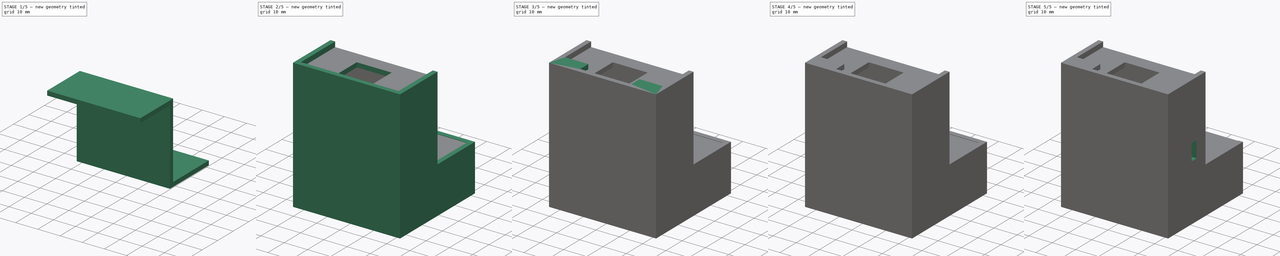
[diagram: build sequence overview — one tinted view per stage of 5, left to right]
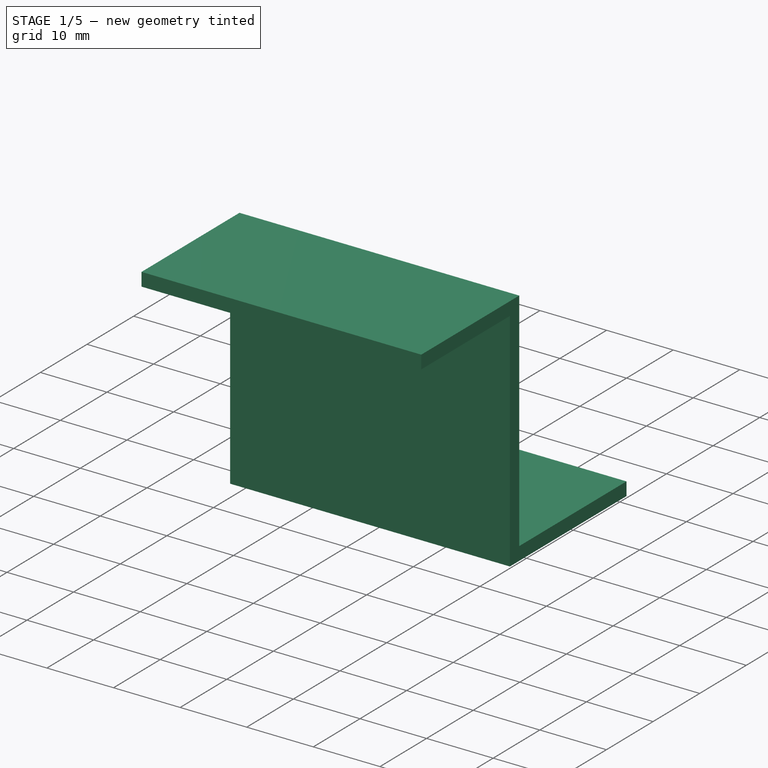
[diagram: stage 1 of 5 — iso view after this stage's code; geometry added in this stage tinted green]
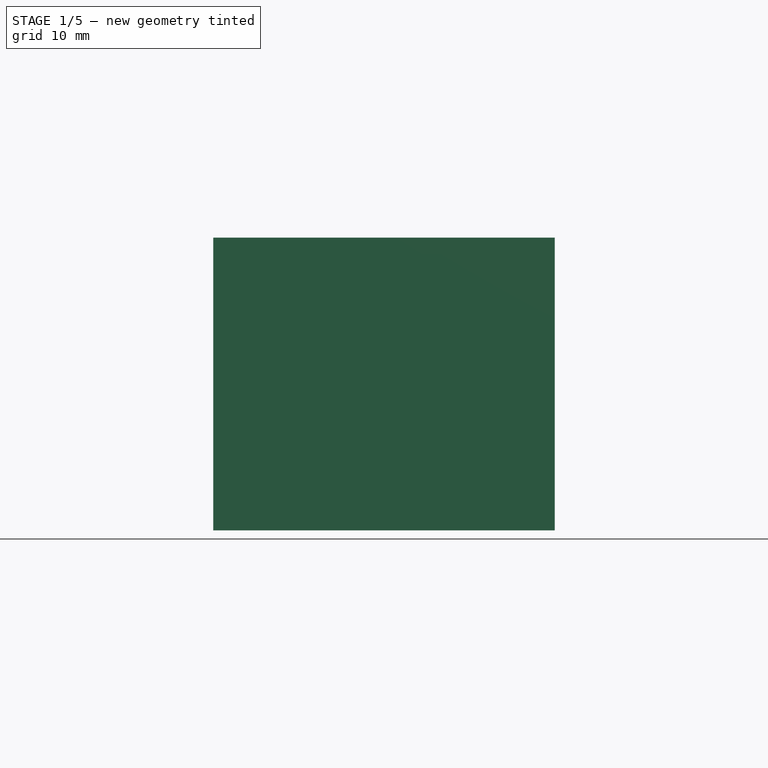
[diagram: stage 1 of 5 — front view after this stage's code; geometry added in this stage tinted green]
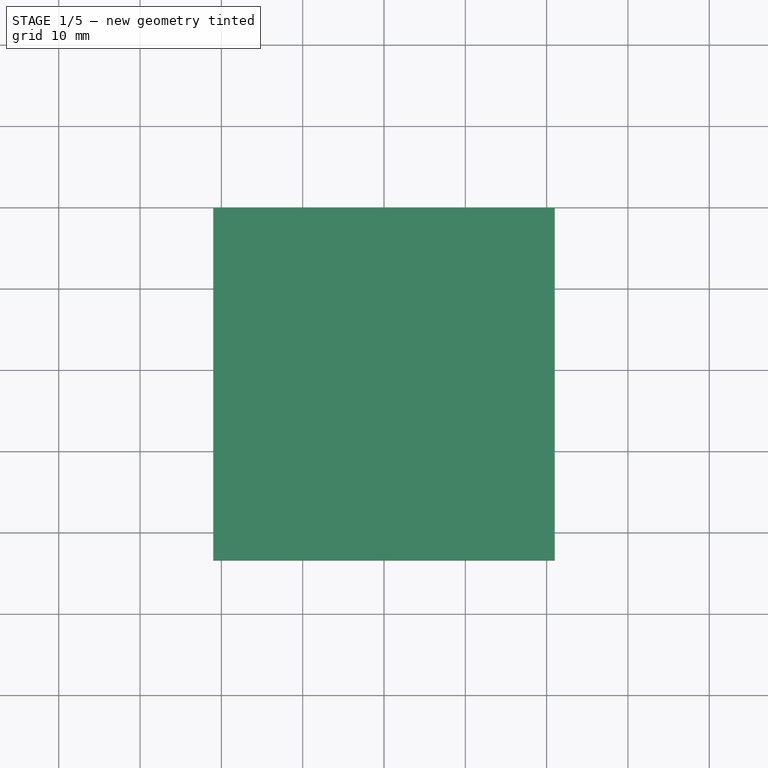
[diagram: stage 1 of 5 — top view after this stage's code; geometry added in this stage tinted green]
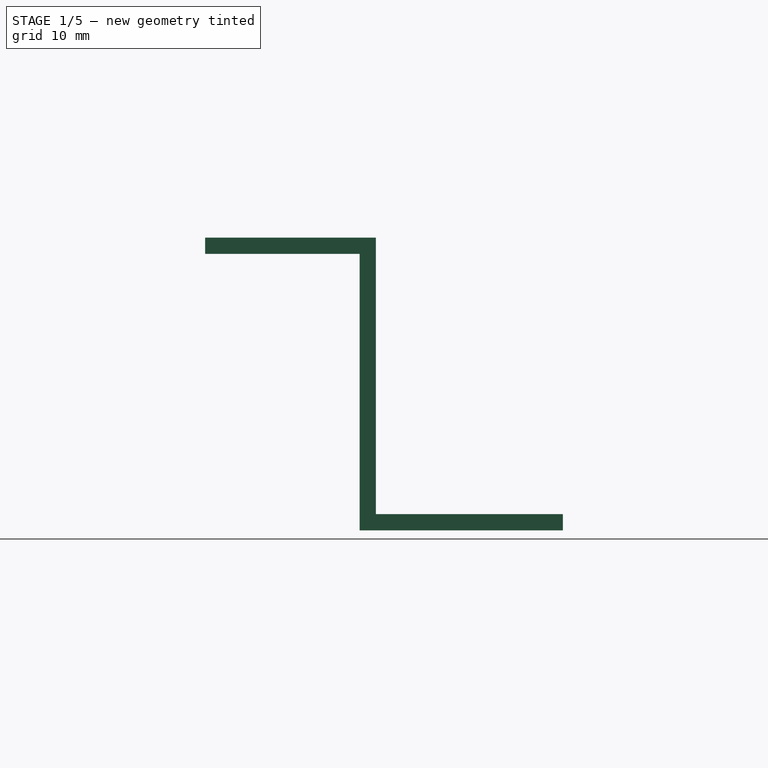
[diagram: stage 1 of 5 — right view after this stage's code; geometry added in this stage tinted green]
FCSTD DOCUMENT  (FreeCAD 1.0R39109 (Git))
Label: Casing for cable assemblies
License: All rights reserved
LicenseURL: https://en.wikipedia.org/wiki/All_rights_reserved
objects: Sketcher::SketchObject×23, PartDesign::Pocket×13, PartDesign::Pad×11, PartDesign::Body×2
note: 120 computed .brp shape members not serialized (recipe doc carries the construction recipe); baked Part::Feature solids carry a one-line shape summary decoded from their .brp

FEATURE [Sketcher::SketchObject] Sketch015
  ArcFitTolerance = 1e-06
  AttachmentSupport = -> [XZ_Plane001]
  FullyConstrained = false
  MakeInternals = false
  MapMode = 5
  Placement = pos=(0,0,0) rot=(1,0,0;1.5708rad)
  sketch-geometry (5):
    g0: LineSegment StartX=-21 StartY=-26.1813 StartZ=0 EndX=21 EndY=-26.1813 EndZ=0
    g1: LineSegment StartX=21 StartY=-26.1813 StartZ=0 EndX=21 EndY=25.8187 EndZ=0
    g2: LineSegment StartX=21 StartY=25.8187 StartZ=0 EndX=-21 EndY=25.8187 EndZ=0
    g3: LineSegment StartX=-21 StartY=25.8187 StartZ=0 EndX=-21 EndY=-26.1813 EndZ=0
    g4: GeomPoint [constr] X=0 Y=-0.181256 Z=0
  constraints (12):
    c: Coincident(g0,g1)
    c: Coincident(g1,g2)
    c: Coincident(g2,g3)
    c: Coincident(g3,g0)
    c: Horizontal(g0)
    c: Horizontal(g2)
    c: Vertical(g1)
    c: Vertical(g3)
    c: Symmetric(g2,g0,g4)
    c: Distance(g1,g3) = 42
    c: Distance(g0,g2) = 52
    c: PointOnObject(g4,g-2)
FEATURE [PartDesign::Pad] Pad010
  Direction = (0,-1,2e-16)
  Length = 44
  Length2 = 10
  Placement = pos=(0,0,0) rot=(1,0,0;1.5708rad)
  Profile = -> Sketch015
  ReferenceAxis = -> Sketch015 [N_Axis]
  Refine = true
  Suppressed = false
  Type = 0
FEATURE [Sketcher::SketchObject] Sketch016
  ArcFitTolerance = 1e-06
  AttachmentSupport = -> [Pad010]
  ExternalGeometry = -> [Pad010]
  FullyConstrained = false
  MakeInternals = false
  MapMode = 5
  Placement = pos=(0,-44,9.8e-15) rot=(1,0,0;1.5708rad)
  sketch-geometry (5):
    g0: LineSegment StartX=-21 StartY=23.8187 StartZ=0 EndX=-21 EndY=-26.1813 EndZ=0
    g1: LineSegment StartX=-21 StartY=-26.1813 StartZ=0 EndX=21 EndY=-26.1813 EndZ=0
    g2: LineSegment StartX=21 StartY=-26.1813 StartZ=0 EndX=21 EndY=23.8187 EndZ=0
    g3: LineSegment StartX=21 StartY=23.8187 StartZ=0 EndX=-21 EndY=23.8187 EndZ=0
    g4: GeomPoint [constr] X=0 Y=0 Z=0
  constraints (9):
    c: Coincident(g0,g1)
    c: Coincident(g1,g2)
    c: Coincident(g2,g3)
    c: Coincident(g3,g0)
    c: Coincident(g4,g-1)
    c: Distance(g-6,g3) = 2
    c: Coincident(g1,g-5)
    c: Coincident(g0,g-5)
    c: PointOnObject(g0,g-4)
FEATURE [PartDesign::Pocket] Pocket006
  BaseFeature = -> Pad010
  Direction = (0,1,-2e-16)
  Length = 19
  Length2 = 5
  Placement = pos=(0,0,0) rot=(1,0,0;1.5708rad)
  Profile = -> Sketch016
  ReferenceAxis = -> Sketch016 [N_Axis]
  Refine = true
  Suppressed = false
  Type = 0
FEATURE [Sketcher::SketchObject] Sketch017
  ArcFitTolerance = 1e-06
  AttachmentSupport = -> [Pocket006]
  ExternalGeometry = -> [Pocket006]
  FullyConstrained = false
  MakeInternals = false
  MapMode = 5
  Placement = pos=(0,5.7e-15,25.8187) rot=(0,0,1;3.14159rad)
  sketch-geometry (4):
    g0: LineSegment StartX=-21 StartY=23 StartZ=0 EndX=-21 EndY=0 EndZ=0
    g1: LineSegment StartX=-21 StartY=0 StartZ=0 EndX=21 EndY=0 EndZ=0
    g2: LineSegment StartX=21 StartY=0 StartZ=0 EndX=21 EndY=23 EndZ=0
    g3: LineSegment StartX=21 StartY=23 StartZ=0 EndX=-21 EndY=23 EndZ=0
  constraints (10):
    c: PointOnObject(g0,g-3)
    c: PointOnObject(g1,g0)
    c: Coincident(g1,g-4)
    c: Horizontal(g1)
    c: Coincident(g2,g1)
    c: Coincident(g3,g2)
    c: Coincident(g3,g0)
    c: PointOnObject(g2,g-4)
    c: Horizontal(g3)
    c: Distance(g3,g-6) = 2
FEATURE [PartDesign::Pocket] Pocket007
  BaseFeature = -> Pocket006
  Direction = (0,0,-1)
  Length = 34
  Length2 = 5
  Placement = pos=(0,0,0) rot=(1,0,0;1.5708rad)
  Profile = -> Sketch017
  ReferenceAxis = -> Sketch017 [N_Axis]
  Refine = true
  Suppressed = false
  Type = 0
FEATURE [Sketcher::SketchObject] Sketch018
  ArcFitTolerance = 1e-06
  AttachmentSupport = -> [Pocket007]
  ExternalGeometry = -> [Pocket007]
  FullyConstrained = false
  MakeInternals = false
  MapMode = 5
  Placement = pos=(0,0,0) rot=(-1,0,0;1.5708rad)
  sketch-geometry (6):
    g0: LineSegment StartX=-21 StartY=10.1813 StartZ=0 EndX=-21 EndY=26.1813 EndZ=0
    g1: LineSegment StartX=-21 StartY=26.1813 StartZ=0 EndX=-7.0155 EndY=26.1813 EndZ=0
    g2: LineSegment StartX=6.99325 StartY=26.1813 StartZ=0 EndX=21 EndY=26.1813 EndZ=0
    g3: LineSegment StartX=21 StartY=10.1813 StartZ=0 EndX=21 EndY=26.1813 EndZ=0
    g4: LineSegment StartX=-7.0155 StartY=26.1813 StartZ=0 EndX=6.99325 EndY=26.1813 EndZ=0
    g5: LineSegment StartX=21 StartY=10.1813 StartZ=0 EndX=-21 EndY=10.1813 EndZ=0
  constraints (14):
    c: PointOnObject(g2,g-3)
    c: PointOnObject(g1,g-3)
    c: Coincident(g0,g-5)
    c: Coincident(g1,g0)
    c: Coincident(g2,g-6)
    c: Coincident(g3,g2)
    c: Coincident(g4,g1)
    c: Coincident(g4,g2)
    c: PointOnObject(g3,g-6)
    c: PointOnObject(g0,g-5)
    c: Coincident(g5,g3)
    c: Coincident(g5,g0)
    c: Horizontal(g5)
    c: Distance(g5,g-4) = 2
FEATURE [PartDesign::Pocket] Pocket008
  BaseFeature = -> Pocket007
  Direction = (0,-1,-2e-16)
  Length = 2
  Length2 = 5
  Placement = pos=(0,0,0) rot=(1,0,0;1.5708rad)
  Profile = -> Sketch018
  ReferenceAxis = -> Sketch018 [N_Axis]
  Refine = true
  Suppressed = false
  Type = 0
FEATURE [PartDesign::Body] Body  label="Main Body"
  AllowCompound = false
  Group = -> [Sketch,Pad,Sketch001,Pocket,Sketch002,Pocket001,Sketch003,Pad001,Sketch004,Pad002,Pad003,Sketch005,Pad004,Sketch006,Pad005,Sketch007,Pocket002,Sketch008,Pad006,Sketch009,Pad007,Sketch010,Pocket003,Sketch011,Pocket004,Sketch012,Pocket005,Sketch013,Pad008,Sketch014,Pad009,Sketch019,Pocket009]
  Origin = -> Origin
  Tip = -> Pocket009
FEATURE [Sketcher::SketchObject] Sketch020
  ArcFitTolerance = 1e-06
  AttachmentSupport = -> [Pocket008]
  ExternalGeometry = -> [Pocket008]
  FullyConstrained = true
  MakeInternals = false
  MapMode = 5
  Placement = pos=(0,-2,-4e-16) rot=(-1,0,0;1.5708rad)
  sketch-geometry (4):
    g0: LineSegment StartX=-21 StartY=26.1813 StartZ=0 EndX=21 EndY=26.1813 EndZ=0
    g1: LineSegment StartX=21 StartY=10.1813 StartZ=0 EndX=21 EndY=26.1813 EndZ=0
    g2: LineSegment StartX=21 StartY=10.1813 StartZ=0 EndX=-21 EndY=10.1813 EndZ=0
    g3: LineSegment StartX=-21 StartY=26.1813 StartZ=0 EndX=-21 EndY=10.1813 EndZ=0
  constraints (8):
    c: Coincident(g0,g-6)
    c: Coincident(g0,g-5)
    c: Coincident(g1,g-4)
    c: Coincident(g1,g0)
    c: Coincident(g2,g1)
    c: Coincident(g2,g-6)
    c: Coincident(g3,g0)
    c: Coincident(g3,g2)
FEATURE [PartDesign::Pocket] Pocket010
  BaseFeature = -> Pocket008
  Direction = (0,-1,-2e-16)
  Length = 23
  Length2 = 5
  Placement = pos=(0,0,0) rot=(1,0,0;1.5708rad)
  Profile = -> Sketch020
  ReferenceAxis = -> Sketch020 [N_Axis]
  Refine = true
  Suppressed = false
  Type = 0
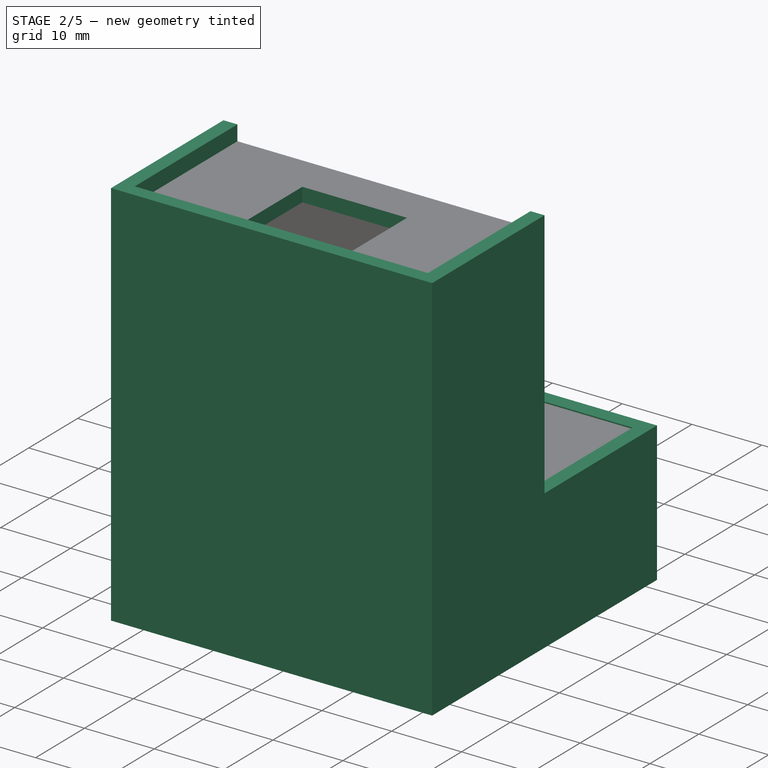
[diagram: stage 2 of 5 — iso view after this stage's code; geometry added in this stage tinted green]
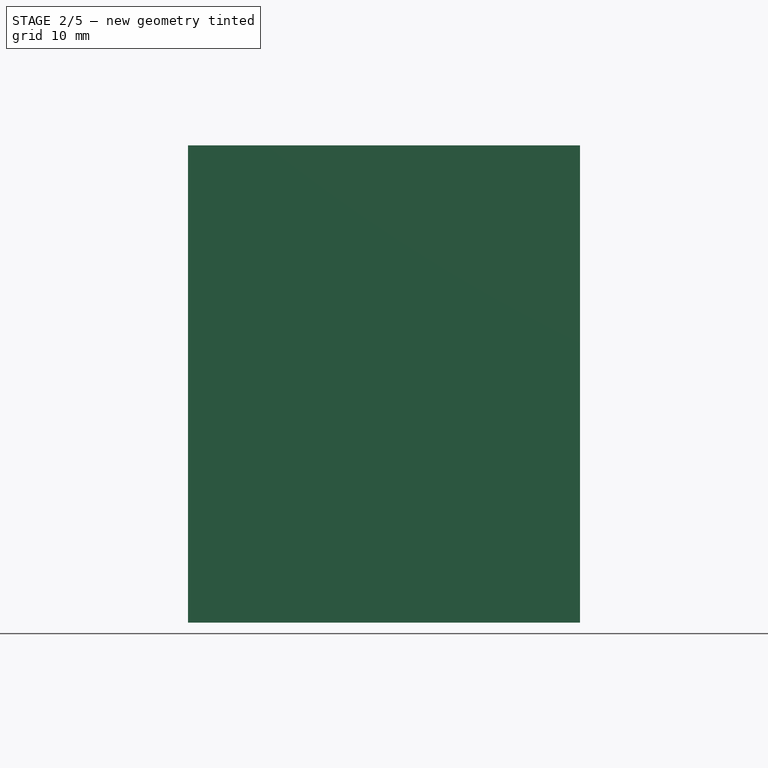
[diagram: stage 2 of 5 — front view after this stage's code; geometry added in this stage tinted green]
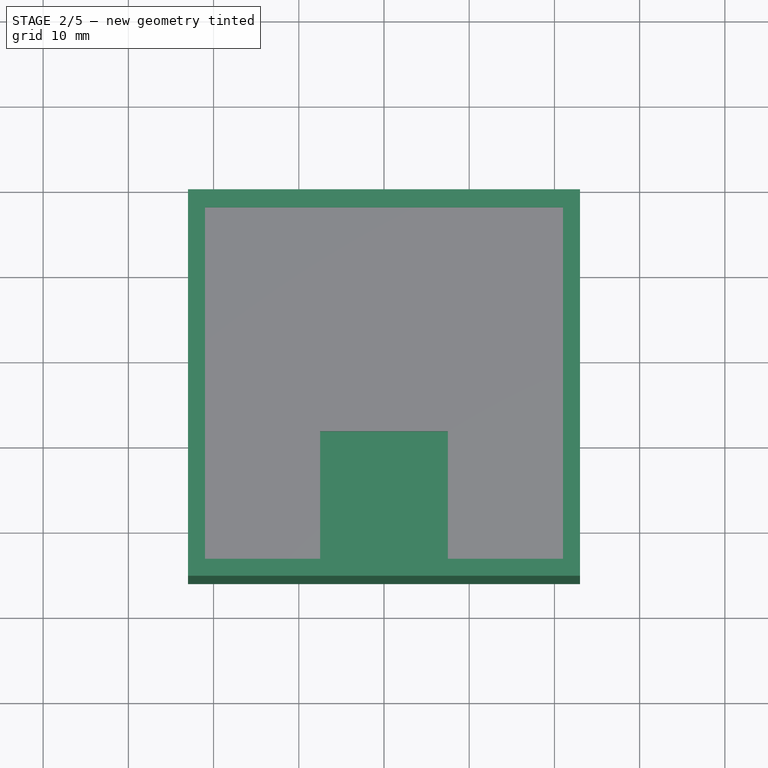
[diagram: stage 2 of 5 — top view after this stage's code; geometry added in this stage tinted green]
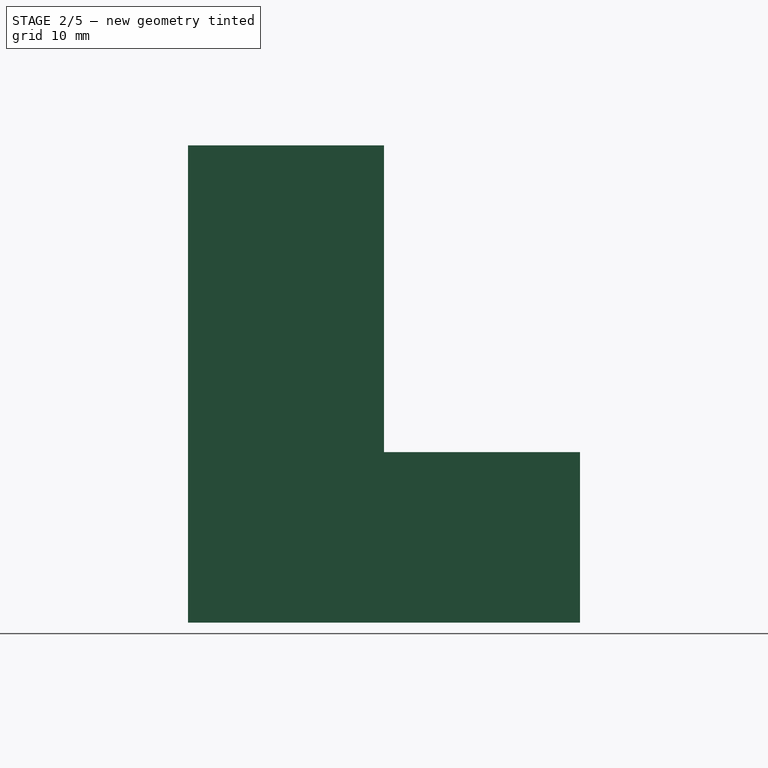
[diagram: stage 2 of 5 — right view after this stage's code; geometry added in this stage tinted green]
FEATURE [Sketcher::SketchObject] Sketch
  ArcFitTolerance = 1e-06
  AttachmentSupport = -> [XZ_Plane]
  FullyConstrained = true
  MakeInternals = false
  MapMode = 5
  Placement = pos=(0,0,0) rot=(1,0,0;1.5708rad)
  sketch-geometry (5):
    g0: LineSegment StartX=-23 StartY=28 StartZ=0 EndX=-23 EndY=-28 EndZ=0
    g1: LineSegment StartX=-23 StartY=-28 StartZ=0 EndX=23 EndY=-28 EndZ=0
    g2: LineSegment StartX=23 StartY=-28 StartZ=0 EndX=23 EndY=28 EndZ=0
    g3: LineSegment StartX=23 StartY=28 StartZ=0 EndX=-23 EndY=28 EndZ=0
    g4: GeomPoint [constr] X=0 Y=0 Z=0
  constraints (12):
    c: Coincident(g0,g1)
    c: Coincident(g1,g2)
    c: Coincident(g2,g3)
    c: Coincident(g3,g0)
    c: Vertical(g0)
    c: Vertical(g2)
    c: Horizontal(g1)
    c: Horizontal(g3)
    c: Symmetric(g2,g0,g4)
    c: Coincident(g4,g-1)
    c: DistanceY(g1,g2) = 56
    c: DistanceX(g0,g1) = 46
FEATURE [PartDesign::Pad] Pad
  Direction = (0,-1,2e-16)
  Length = 46
  Length2 = 10
  Placement = pos=(0,0,0) rot=(1,0,0;1.5708rad)
  Profile = -> Sketch
  ReferenceAxis = -> Sketch [N_Axis]
  Refine = true
  Suppressed = false
  Type = 0
FEATURE [Sketcher::SketchObject] Sketch001
  ArcFitTolerance = 1e-06
  AttachmentSupport = -> [Pad]
  ExternalGeometry = -> [Pad]
  FullyConstrained = true
  MakeInternals = false
  MapMode = 5
  Placement = pos=(0,0,0) rot=(-1,0,0;1.5708rad)
  sketch-geometry (4):
    g0: LineSegment StartX=-23 StartY=-28 StartZ=0 EndX=23 EndY=-28 EndZ=0
    g1: LineSegment StartX=23 StartY=-28 StartZ=0 EndX=23 EndY=8 EndZ=0
    g2: LineSegment StartX=23 StartY=8 StartZ=0 EndX=-23 EndY=8 EndZ=0
    g3: LineSegment StartX=-23 StartY=-28 StartZ=0 EndX=-23 EndY=8 EndZ=0
  constraints (10):
    c: Coincident(g0,g-5)
    c: Coincident(g0,g-4)
    c: PointOnObject(g1,g-4)
    c: DistanceY(g1,g1) = 36
    c: Coincident(g0,g1)
    c: Coincident(g2,g1)
    c: PointOnObject(g2,g-5)
    c: Horizontal(g2)
    c: Coincident(g3,g0)
    c: Coincident(g3,g2)
FEATURE [PartDesign::Pocket] Pocket
  BaseFeature = -> Pad
  Direction = (0,-1,-2e-16)
  Length = 23
  Length2 = 5
  Placement = pos=(0,0,0) rot=(1,0,0;1.5708rad)
  Profile = -> Sketch001
  ReferenceAxis = -> Sketch001 [N_Axis]
  Refine = true
  Suppressed = false
  Type = 0
FEATURE [Sketcher::SketchObject] Sketch002
  ArcFitTolerance = 1e-06
  AttachmentSupport = -> [Pocket]
  ExternalGeometry = -> [Pocket]
  FullyConstrained = false
  MakeInternals = false
  MapMode = 5
  Placement = pos=(0,6.2e-15,28) rot=(0,0,1;3.14159rad)
  sketch-geometry (5):
    g0: LineSegment StartX=-21 StartY=44 StartZ=0 EndX=-21 EndY=2.13527 EndZ=0
    g1: LineSegment StartX=-21 StartY=2.13527 StartZ=0 EndX=21 EndY=2.13527 EndZ=0
    g2: LineSegment StartX=21 StartY=2.13527 StartZ=0 EndX=21 EndY=44 EndZ=0
    g3: LineSegment StartX=21 StartY=44 StartZ=0 EndX=-21 EndY=44 EndZ=0
    g4: GeomPoint [constr] X=0 Y=23.0676 Z=0
  constraints (12):
    c: Coincident(g0,g1)
    c: Coincident(g1,g2)
    c: Coincident(g2,g3)
    c: Coincident(g3,g0)
    c: Vertical(g0)
    c: Vertical(g2)
    c: Horizontal(g1)
    c: Horizontal(g3)
    c: Symmetric(g2,g0,g4)
    c: PointOnObject(g4,g-2)
    c: Distance(g-3,g2) = 2
    c: Distance(g-4,g3) = 2
FEATURE [PartDesign::Pocket] Pocket001
  BaseFeature = -> Pocket
  Direction = (0,0,-1)
  Length = 54
  Length2 = 5
  Placement = pos=(0,0,0) rot=(1,0,0;1.5708rad)
  Profile = -> Sketch002
  ReferenceAxis = -> Sketch002 [N_Axis]
  Refine = true
  Suppressed = false
  Type = 0
FEATURE [Sketcher::SketchObject] Sketch021
  ArcFitTolerance = 1e-06
  AttachmentSupport = -> [Pocket010]
  ExternalGeometry = -> [Pocket010]
  FullyConstrained = true
  MakeInternals = false
  MapMode = 5
  Placement = pos=(0,-23,0) rot=(-1,0,0;1.5708rad)
  sketch-geometry (2):
    g0: Circle CenterX=16 CenterY=0 CenterZ=0 NormalX=0 NormalY=0 NormalZ=1 AngleXU=0 Radius=1.625
    g1: Circle CenterX=-16 CenterY=0 CenterZ=0 NormalX=0 NormalY=0 NormalZ=1 AngleXU=0 Radius=1.625
  constraints (6):
    c: Diameter(g0) = 3.25
    c: PointOnObject(g0,g-1)
    c: Distance(g0,g-3) = 5
    c: Diameter(g1) = 3.25
    c: PointOnObject(g1,g-1)
    c: Distance(g1,g-4) = 5
FEATURE [PartDesign::Pocket] Pocket011
  BaseFeature = -> Pocket010
  Direction = (0,-1,-2e-16)
  Length = 5
  Length2 = 5
  Placement = pos=(0,0,0) rot=(1,0,0;1.5708rad)
  Profile = -> Sketch021
  ReferenceAxis = -> Sketch021 [N_Axis]
  Refine = true
  Suppressed = false
  Type = 0
FEATURE [Sketcher::SketchObject] Sketch022
  ArcFitTolerance = 1e-06
  AttachmentSupport = -> [Pocket011]
  ExternalGeometry = -> [Pocket011]
  FullyConstrained = true
  MakeInternals = false
  MapMode = 5
  Placement = pos=(0,5.7e-15,25.8187) rot=(0,0,1;3.14159rad)
  sketch-geometry (4):
    g0: LineSegment StartX=-7.5 StartY=44 StartZ=0 EndX=-7.5 EndY=29 EndZ=0
    g1: LineSegment StartX=-7.5 StartY=29 StartZ=0 EndX=7.5 EndY=29 EndZ=0
    g2: LineSegment StartX=7.5 StartY=29 StartZ=0 EndX=7.5 EndY=44 EndZ=0
    g3: LineSegment StartX=7.5 StartY=44 StartZ=0 EndX=-7.5 EndY=44 EndZ=0
  constraints (11):
    c: Coincident(g0,g1)
    c: Coincident(g1,g2)
    c: Coincident(g2,g3)
    c: Coincident(g3,g0)
    c: Vertical(g0)
    c: Vertical(g2)
    c: Horizontal(g1)
    c: Symmetric(g2,g0,g-2)
    c: DistanceX(g3,g3) = 15
    c: DistanceY(g2,g2) = 15
    c: PointOnObject(g2,g-3)
FEATURE [PartDesign::Pocket] Pocket012
  BaseFeature = -> Pocket011
  Direction = (0,0,-1)
  Length = 5
  Length2 = 5
  Placement = pos=(0,0,0) rot=(1,0,0;1.5708rad)
  Profile = -> Sketch022
  ReferenceAxis = -> Sketch022 [N_Axis]
  Refine = true
  Suppressed = false
  Type = 0
FEATURE [PartDesign::Body] Body001  label="Body"
  AllowCompound = false
  Group = -> [Sketch015,Pad010,Sketch016,Pocket006,Sketch017,Pocket007,Sketch018,Pocket008,Sketch020,Pocket010,Sketch021,Pocket011,Sketch022,Pocket012]
  Origin = -> Origin001
  Tip = -> Pocket012
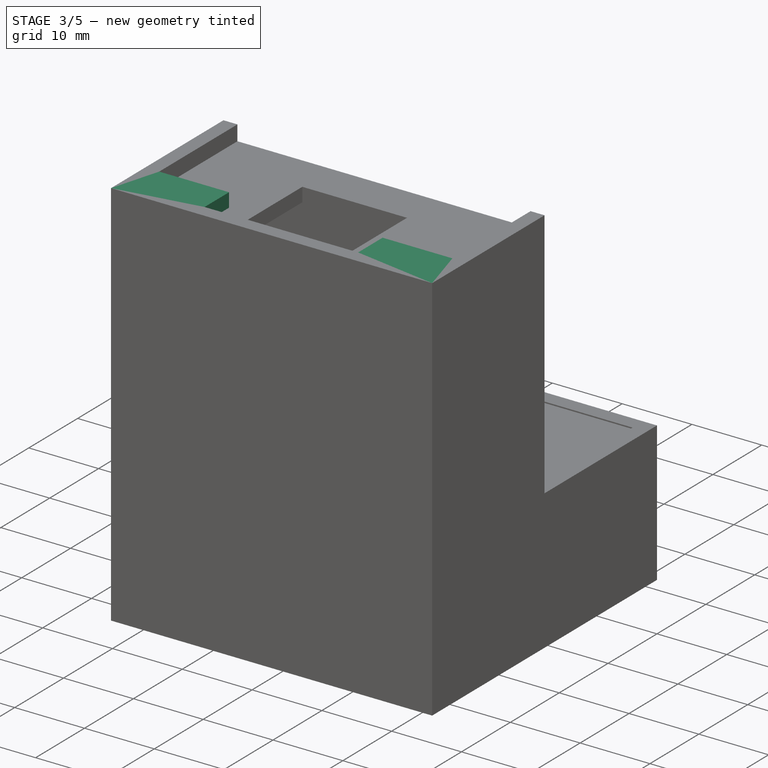
[diagram: stage 3 of 5 — iso view after this stage's code; geometry added in this stage tinted green]
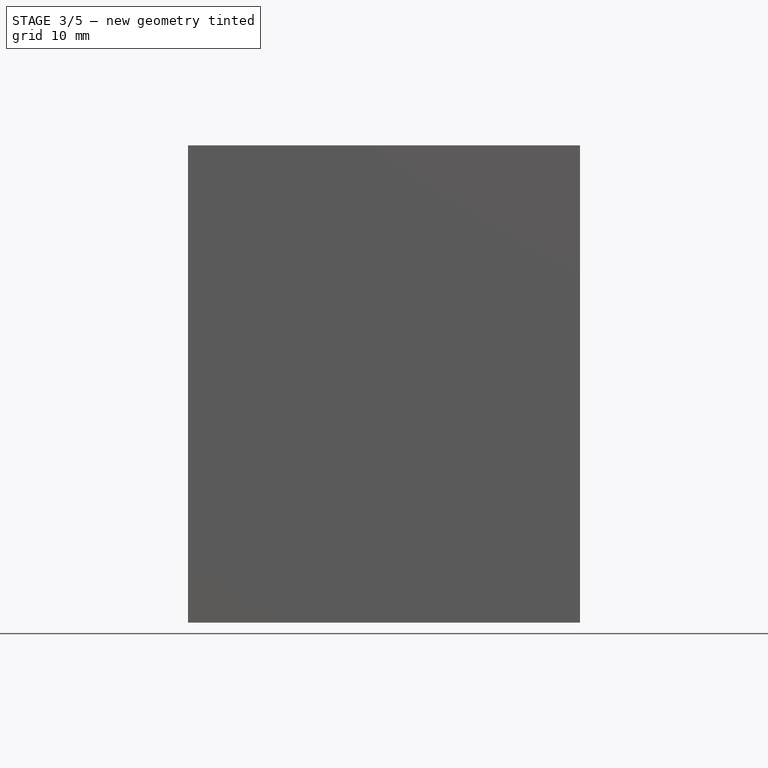
[diagram: stage 3 of 5 — front view after this stage's code; geometry added in this stage tinted green]
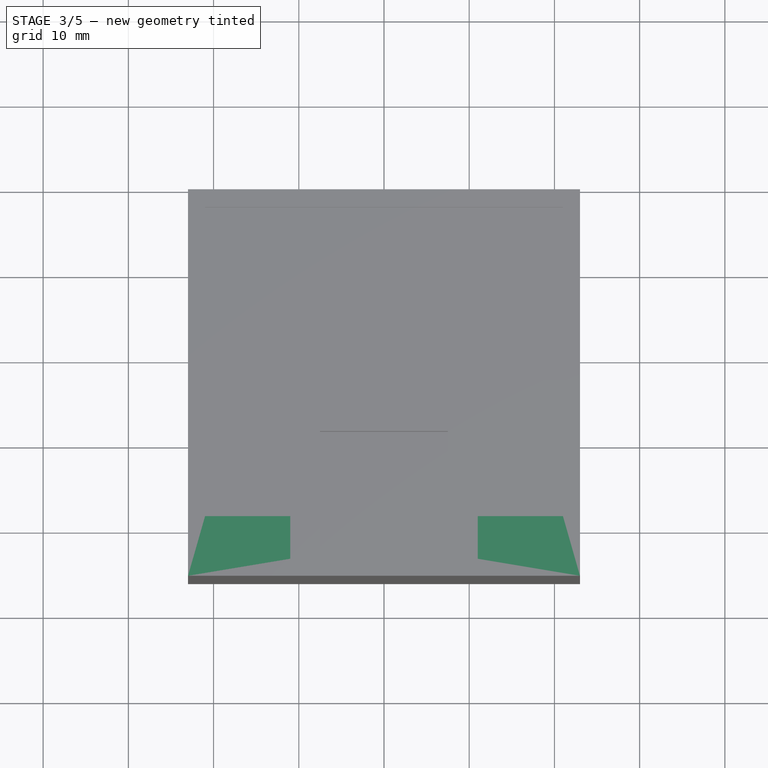
[diagram: stage 3 of 5 — top view after this stage's code; geometry added in this stage tinted green]
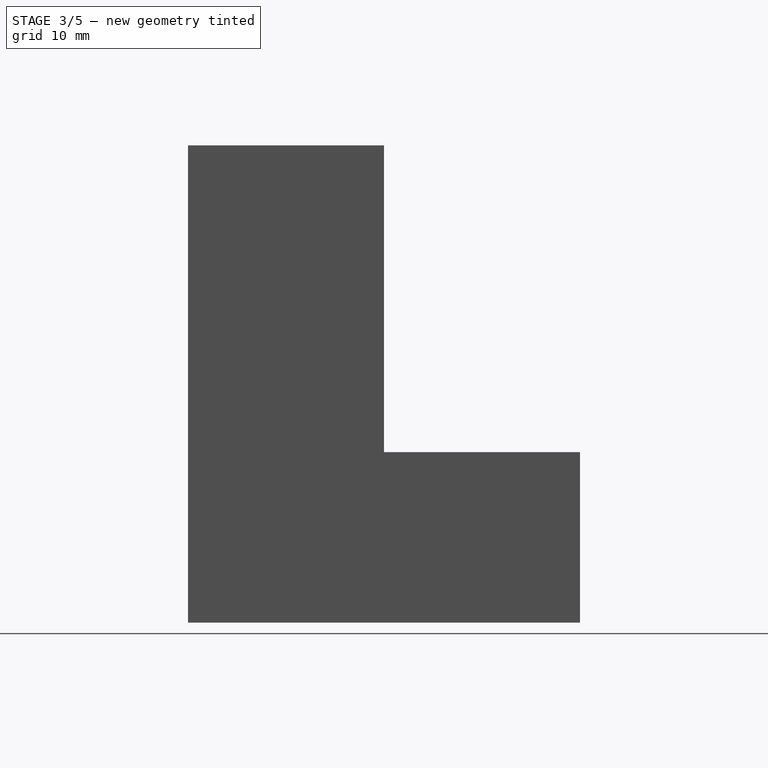
[diagram: stage 3 of 5 — right view after this stage's code; geometry added in this stage tinted green]
FEATURE [Sketcher::SketchObject] Sketch003
  ArcFitTolerance = 1e-06
  AttachmentSupport = -> [Pocket001]
  ExternalGeometry = -> [Pocket001]
  FullyConstrained = false
  MakeInternals = false
  MapMode = 5
  Placement = pos=(0,-44,0) rot=(-1,0,0;1.5708rad)
  sketch-geometry (8):
    g0: LineSegment StartX=-21 StartY=-28 StartZ=0 EndX=-21 EndY=-26 EndZ=0
    g1: LineSegment StartX=21 StartY=-28 StartZ=0 EndX=21 EndY=-26 EndZ=0
    g2: LineSegment StartX=-21 StartY=-26 StartZ=0 EndX=-11 EndY=-26 EndZ=0
    g3: LineSegment StartX=-21 StartY=-28 StartZ=0 EndX=-11 EndY=-28 EndZ=0
    g4: LineSegment StartX=-11 StartY=-26 StartZ=0 EndX=-11 EndY=-28 EndZ=0
    g5: LineSegment StartX=21 StartY=-28 StartZ=0 EndX=11 EndY=-28 EndZ=0
    g6: LineSegment StartX=21 StartY=-26 StartZ=0 EndX=11 EndY=-26 EndZ=0
    g7: LineSegment StartX=11 StartY=-28 StartZ=0 EndX=11 EndY=-26 EndZ=0
  constraints (23):
    c: Distance(g0) = 2
    c: PointOnObject(g0,g-5)
    c: PointOnObject(g1,g-4)
    c: Distance(g2) = 10
    c: Coincident(g2,g0)
    c: Horizontal(g2)
    c: Distance(g3) = 10
    c: Coincident(g3,g0)
    c: PointOnObject(g3,g-3)
    c: Horizontal(g3)
    c: Coincident(g4,g2)
    c: Coincident(g4,g3)
    c: Vertical(g4)
    c: Distance(g5) = 10
    c: Coincident(g5,g1)
    c: PointOnObject(g5,g-3)
    c: Horizontal(g5)
    c: Distance(g6) = 10
    c: Coincident(g6,g1)
    c: Horizontal(g6)
    c: Coincident(g7,g5)
    c: Coincident(g7,g6)
    c: Vertical(g7)
FEATURE [PartDesign::Pad] Pad001
  BaseFeature = -> Pocket001
  Direction = (0,1,2e-16)
  Length = 5
  Length2 = 10
  Placement = pos=(0,0,0) rot=(1,0,0;1.5708rad)
  Profile = -> Sketch003
  ReferenceAxis = -> Sketch003 [N_Axis]
  Refine = true
  Suppressed = false
  Type = 0
FEATURE [Sketcher::SketchObject] Sketch004
  ArcFitTolerance = 1e-06
  AttachmentSupport = -> [Pad001]
  ExternalGeometry = -> [Pad001]
  FullyConstrained = false
  MakeInternals = false
  MapMode = 5
  Placement = pos=(0,-44,0) rot=(-1,0,0;1.5708rad)
  sketch-geometry (8):
    g0: LineSegment StartX=-21 StartY=-24 StartZ=0 EndX=-11 EndY=-24 EndZ=0
    g1: LineSegment StartX=-21 StartY=-24 StartZ=0 EndX=-21 EndY=-22 EndZ=0
    g2: LineSegment StartX=-21 StartY=-22 StartZ=0 EndX=-11 EndY=-22 EndZ=0
    g3: LineSegment StartX=-11 StartY=-24 StartZ=0 EndX=-11 EndY=-22 EndZ=0
    g4: LineSegment StartX=11 StartY=-24 StartZ=0 EndX=21 EndY=-24 EndZ=0
    g5: LineSegment StartX=11 StartY=-24 StartZ=0 EndX=11 EndY=-22 EndZ=0
    g6: LineSegment StartX=11 StartY=-22 StartZ=0 EndX=21 EndY=-22 EndZ=0
    g7: LineSegment StartX=21 StartY=-22 StartZ=0 EndX=21 EndY=-24 EndZ=0
  constraints (23):
    c: Distance(g0) = 10
    c: PointOnObject(g0,g-3)
    c: Horizontal(g0)
    c: Distance(g-4,g0) = 2
    c: Distance(g1) = 2
    c: Coincident(g1,g0)
    c: PointOnObject(g1,g-3)
    c: Distance(g2) = 10
    c: Coincident(g2,g1)
    c: Horizontal(g2)
    c: Coincident(g3,g2)
    c: Coincident(g3,g0)
    c: Distance(g4) = 10
    c: PointOnObject(g4,g-5)
    c: Horizontal(g4)
    c: Distance(g5) = 2
    c: Coincident(g5,g4)
    c: Vertical(g5)
    c: Coincident(g6,g5)
    c: PointOnObject(g6,g-5)
    c: Horizontal(g6)
    c: Coincident(g7,g6)
    c: Coincident(g7,g4)
FEATURE [PartDesign::Pad] Pad002
  BaseFeature = -> Pad001
  Direction = (0,1,2e-16)
  Length = 5
  Length2 = 10
  Placement = pos=(0,0,0) rot=(1,0,0;1.5708rad)
  Profile = -> Sketch004
  ReferenceAxis = -> Sketch004 [N_Axis]
  Refine = true
  Suppressed = false
  Type = 0
FEATURE [PartDesign::Pad] Pad003
  BaseFeature = -> Pad002
  Direction = (0,1,2e-16)
  Length = 5
  Length2 = 10
  Placement = pos=(0,0,0) rot=(1,0,0;1.5708rad)
  Profile = -> Sketch004
  ReferenceAxis = -> Sketch004 [N_Axis]
  Refine = true
  Suppressed = false
  Type = 0
FEATURE [Sketcher::SketchObject] Sketch005
  ArcFitTolerance = 1e-06
  AttachmentSupport = -> [Pad003]
  ExternalGeometry = -> [Pad003]
  FullyConstrained = true
  MakeInternals = false
  MapMode = 5
  Placement = pos=(-21,0,0) rot=(0.707107,0,0.707107;3.14159rad)
  sketch-geometry (3):
    g0: LineSegment StartX=22 StartY=39 StartZ=0 EndX=17 EndY=44 EndZ=0
    g1: LineSegment StartX=22 StartY=39 StartZ=0 EndX=22 EndY=44 EndZ=0
    g2: LineSegment StartX=22 StartY=44 StartZ=0 EndX=17 EndY=44 EndZ=0
  constraints (7):
    c: Coincident(g0,g-4)
    c: PointOnObject(g0,g-5)
    c: Angle(g-5,g0) = 2.35619
    c: Coincident(g1,g0)
    c: Coincident(g1,g-5)
    c: Coincident(g2,g1)
    c: Coincident(g2,g0)
FEATURE [PartDesign::Pad] Pad004
  BaseFeature = -> Pad003
  Direction = (1,0,-2e-16)
  Length = 10
  Length2 = 10
  Placement = pos=(0,0,0) rot=(1,0,0;1.5708rad)
  Profile = -> Sketch005
  ReferenceAxis = -> Sketch005 [N_Axis]
  Refine = true
  Suppressed = false
  Type = 0
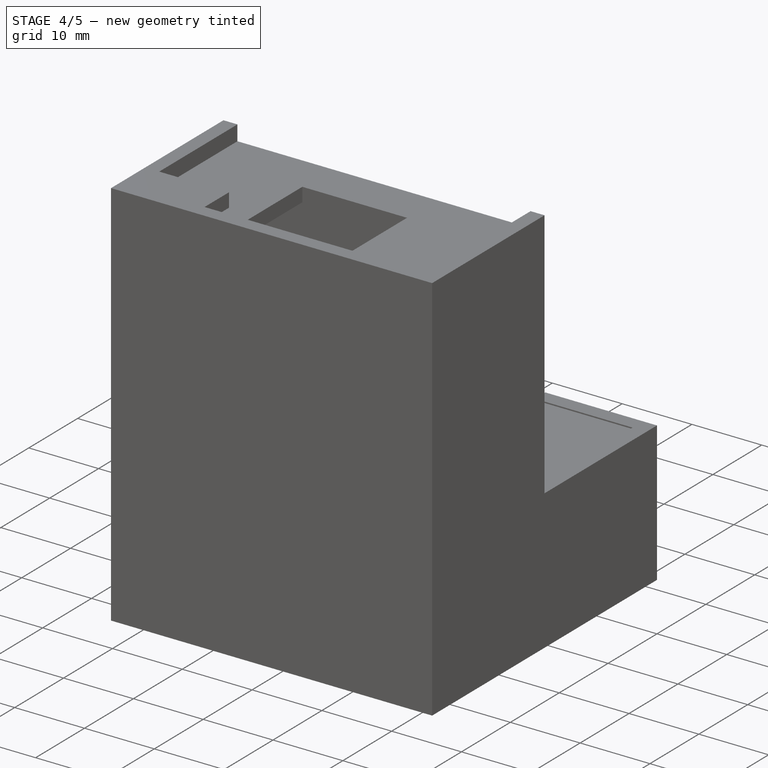
[diagram: stage 4 of 5 — iso view after this stage's code; geometry added in this stage tinted green]
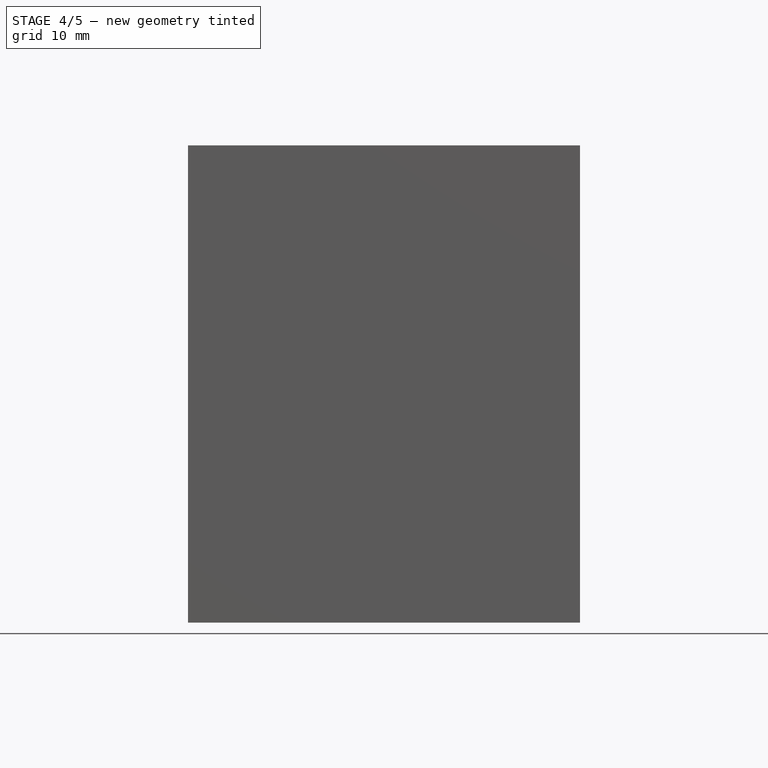
[diagram: stage 4 of 5 — front view after this stage's code; geometry added in this stage tinted green]
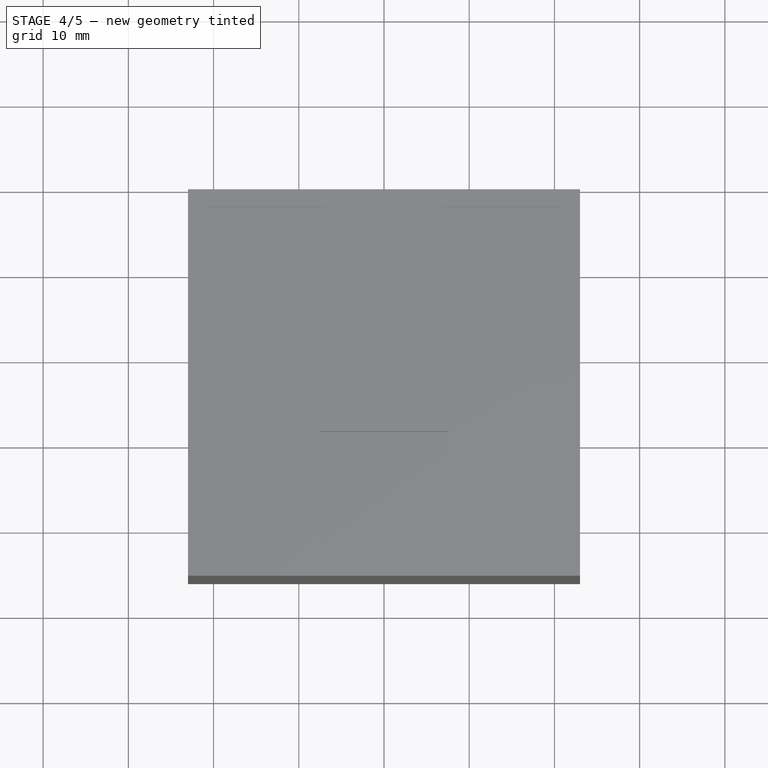
[diagram: stage 4 of 5 — top view after this stage's code; geometry added in this stage tinted green]
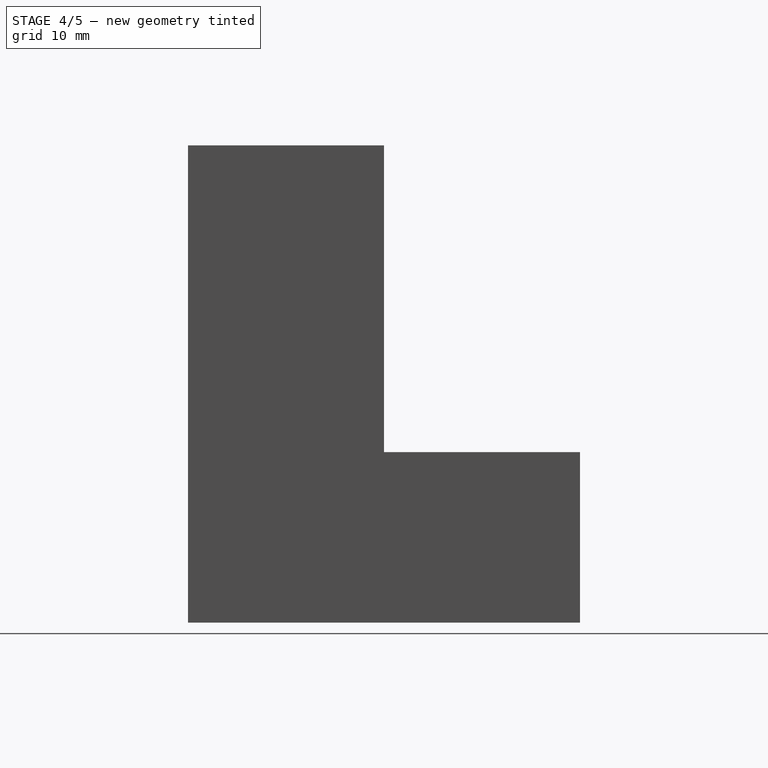
[diagram: stage 4 of 5 — right view after this stage's code; geometry added in this stage tinted green]
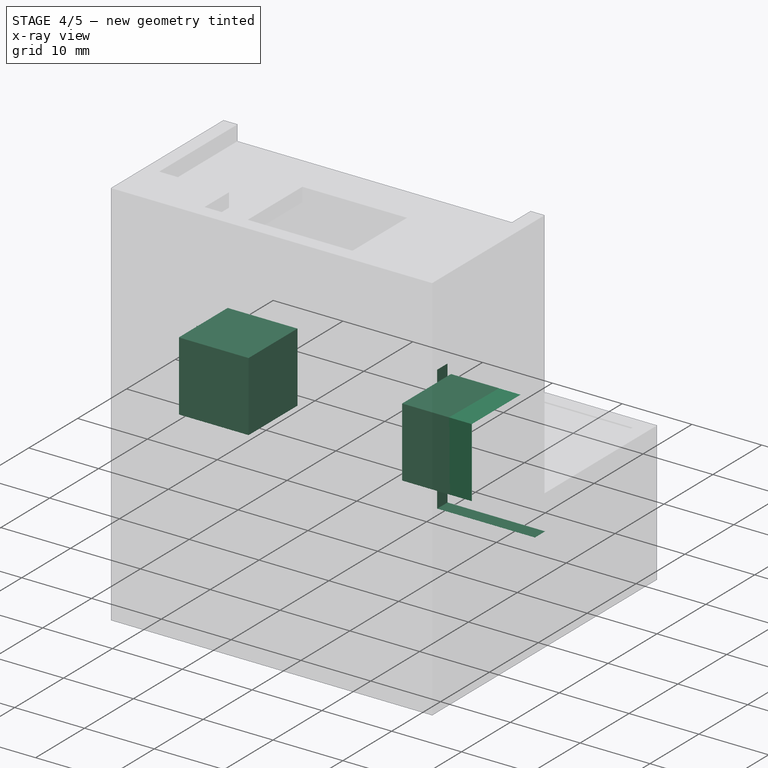
[diagram: stage 4 of 5 — x-ray composite at the iso view; earlier geometry ghosted, this stage's added geometry solid]
FEATURE [Sketcher::SketchObject] Sketch006
  ArcFitTolerance = 1e-06
  AttachmentSupport = -> [Pad004]
  ExternalGeometry = -> [Pad004]
  FullyConstrained = true
  MakeInternals = false
  MapMode = 5
  Placement = pos=(21,0,0) rot=(0.707107,0,-0.707107;3.14159rad)
  sketch-geometry (3):
    g0: LineSegment StartX=-17 StartY=44 StartZ=0 EndX=-22 EndY=44 EndZ=0
    g1: LineSegment StartX=-22 StartY=39 StartZ=0 EndX=-17 EndY=44 EndZ=0
    g2: LineSegment StartX=-22 StartY=44 StartZ=0 EndX=-22 EndY=39 EndZ=0
  constraints (7):
    c: Coincident(g0,g-3)
    c: Horizontal(g0)
    c: Coincident(g1,g-4)
    c: Angle(g0,g1) = 0.785398
    c: Coincident(g2,g0)
    c: Coincident(g2,g1)
    c: Coincident(g0,g1)
FEATURE [PartDesign::Pad] Pad005
  BaseFeature = -> Pad004
  Direction = (-1,0,-2e-16)
  Length = 10
  Length2 = 10
  Placement = pos=(0,0,0) rot=(1,0,0;1.5708rad)
  Profile = -> Sketch006
  ReferenceAxis = -> Sketch006 [N_Axis]
  Refine = true
  Suppressed = false
  Type = 0
FEATURE [Sketcher::SketchObject] Sketch007
  ArcFitTolerance = 1e-06
  AttachmentSupport = -> [Pad005]
  ExternalGeometry = -> [Pad005]
  FullyConstrained = true
  MakeInternals = false
  MapMode = 5
  Placement = pos=(0,1.8e-15,-8) rot=(0,0,1;3.14159rad)
  sketch-geometry (4):
    g0: LineSegment StartX=-7 StartY=2.13527 StartZ=0 EndX=7 EndY=2.13527 EndZ=0
    g1: LineSegment StartX=-7 StartY=0 StartZ=0 EndX=7 EndY=0 EndZ=0
    g2: LineSegment StartX=7 StartY=0 StartZ=0 EndX=7 EndY=2.13527 EndZ=0
    g3: LineSegment StartX=-7 StartY=2.13527 StartZ=0 EndX=-7 EndY=0 EndZ=0
  constraints (10):
    c: PointOnObject(g0,g-3)
    c: PointOnObject(g1,g-4)
    c: Symmetric(g0,g0,g-2)
    c: Symmetric(g1,g1,g-2)
    c: DistanceX(g1,g1) = 14
    c: Coincident(g2,g1)
    c: Coincident(g2,g0)
    c: Vertical(g2)
    c: Coincident(g3,g0)
    c: Coincident(g3,g1)
FEATURE [PartDesign::Pocket] Pocket002
  BaseFeature = -> Pad005
  Direction = (0,0,-1)
  Length = 18
  Length2 = 5
  Placement = pos=(0,0,0) rot=(1,0,0;1.5708rad)
  Profile = -> Sketch007
  ReferenceAxis = -> Sketch007 [N_Axis]
  Refine = true
  Suppressed = false
  Type = 0
FEATURE [Sketcher::SketchObject] Sketch008
  ArcFitTolerance = 1e-06
  AttachmentSupport = -> [Pocket002]
  ExternalGeometry = -> [Pocket002]
  FullyConstrained = true
  MakeInternals = false
  MapMode = 5
  Placement = pos=(21,0,0) rot=(0.707107,0,-0.707107;3.14159rad)
  sketch-geometry (4):
    g0: LineSegment StartX=-5 StartY=25 StartZ=0 EndX=5 EndY=25 EndZ=0
    g1: LineSegment StartX=5 StartY=25 StartZ=0 EndX=5 EndY=35 EndZ=0
    g2: LineSegment StartX=5 StartY=35 StartZ=0 EndX=-5 EndY=35 EndZ=0
    g3: LineSegment StartX=-5 StartY=35 StartZ=0 EndX=-5 EndY=25 EndZ=0
  constraints (11):
    c: Coincident(g0,g1)
    c: Coincident(g1,g2)
    c: Coincident(g2,g3)
    c: Coincident(g3,g0)
    c: Horizontal(g2)
    c: Vertical(g1)
    c: Vertical(g3)
    c: Distance(g1,g3) = 10
    c: Distance(g0,g2) = 10
    c: Symmetric(g0,g0,g-2)
    c: Distance(g-3,g0) = 2
FEATURE [PartDesign::Pad] Pad006
  BaseFeature = -> Pocket002
  Direction = (-1,0,-2e-16)
  Length = 10
  Length2 = 10
  Placement = pos=(0,0,0) rot=(1,0,0;1.5708rad)
  Profile = -> Sketch008
  ReferenceAxis = -> Sketch008 [N_Axis]
  Refine = true
  Suppressed = false
  Type = 0
FEATURE [Sketcher::SketchObject] Sketch009
  ArcFitTolerance = 1e-06
  AttachmentSupport = -> [Pad006]
  ExternalGeometry = -> [Pad006]
  FullyConstrained = true
  MakeInternals = false
  MapMode = 5
  Placement = pos=(-21,0,0) rot=(0.707107,0,0.707107;3.14159rad)
  sketch-geometry (4):
    g0: LineSegment StartX=-5 StartY=25 StartZ=0 EndX=5 EndY=25 EndZ=0
    g1: LineSegment StartX=5 StartY=25 StartZ=0 EndX=5 EndY=35 EndZ=0
    g2: LineSegment StartX=5 StartY=35 StartZ=0 EndX=-5 EndY=35 EndZ=0
    g3: LineSegment StartX=-5 StartY=35 StartZ=0 EndX=-5 EndY=25 EndZ=0
  constraints (11):
    c: Coincident(g0,g1)
    c: Coincident(g1,g2)
    c: Coincident(g2,g3)
    c: Coincident(g3,g0)
    c: Horizontal(g2)
    c: Vertical(g1)
    c: Vertical(g3)
    c: Distance(g1,g3) = 10
    c: Distance(g0,g2) = 10
    c: Symmetric(g0,g0,g-2)
    c: Distance(g-3,g0) = 2
FEATURE [PartDesign::Pad] Pad007
  BaseFeature = -> Pad006
  Direction = (1,0,-2e-16)
  Length = 10
  Length2 = 10
  Placement = pos=(0,0,0) rot=(1,0,0;1.5708rad)
  Profile = -> Sketch009
  ReferenceAxis = -> Sketch009 [N_Axis]
  Refine = true
  Suppressed = false
  Type = 0
FEATURE [Sketcher::SketchObject] Sketch010
  ArcFitTolerance = 1e-06
  AttachmentSupport = -> [Pad007]
  ExternalGeometry = -> [Pad007]
  FullyConstrained = true
  MakeInternals = false
  MapMode = 5
  Placement = pos=(-23,0,0) rot=(0.707107,0,-0.707107;3.14159rad)
  sketch-geometry (5):
    g0: LineSegment StartX=-3.5 StartY=28.5 StartZ=0 EndX=3.5 EndY=28.5 EndZ=0
    g1: LineSegment StartX=3.5 StartY=28.5 StartZ=0 EndX=3.5 EndY=31.5 EndZ=0
    g2: LineSegment StartX=3.5 StartY=31.5 StartZ=0 EndX=-3.5 EndY=31.5 EndZ=0
    g3: LineSegment StartX=-3.5 StartY=31.5 StartZ=0 EndX=-3.5 EndY=28.5 EndZ=0
    g4: GeomPoint [constr] X=0 Y=30 Z=0
  constraints (13):
    c: Coincident(g0,g1)
    c: Coincident(g1,g2)
    c: Coincident(g2,g3)
    c: Coincident(g3,g0)
    c: Horizontal(g0)
    c: Horizontal(g2)
    c: Vertical(g1)
    c: Vertical(g3)
    c: Symmetric(g2,g0,g4)
    c: Distance(g1,g3) = 7
    c: Distance(g0,g2) = 3
    c: PointOnObject(g4,g-2)
    c: Distance(g4,g-4) = 5
FEATURE [PartDesign::Pocket] Pocket003
  BaseFeature = -> Pad007
  Direction = (1,0,2e-16)
  Length = 10
  Length2 = 5
  Placement = pos=(0,0,0) rot=(1,0,0;1.5708rad)
  Profile = -> Sketch010
  ReferenceAxis = -> Sketch010 [N_Axis]
  Refine = true
  Suppressed = false
  Type = 0
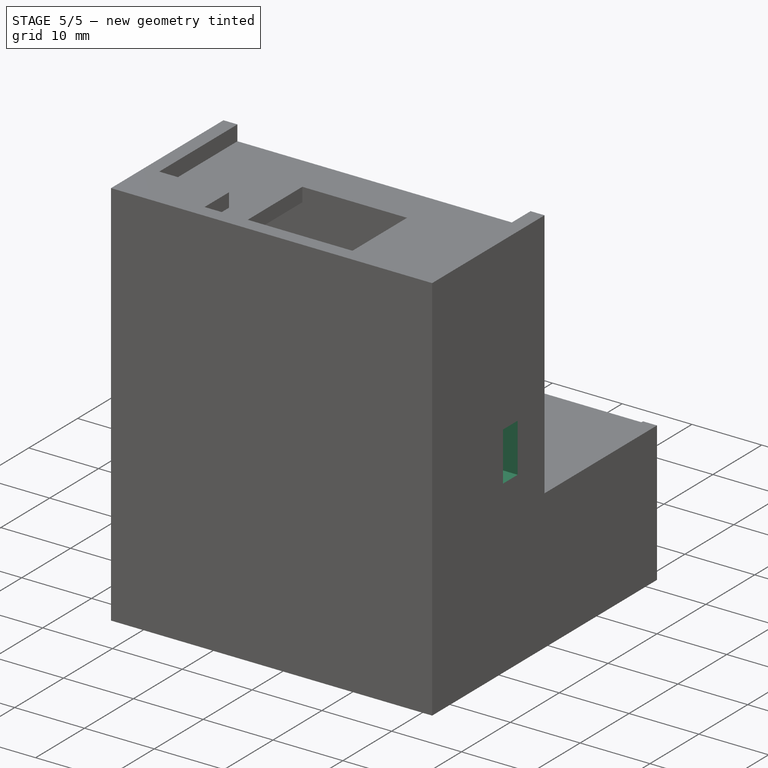
[diagram: stage 5 of 5 — iso view after this stage's code; geometry added in this stage tinted green]
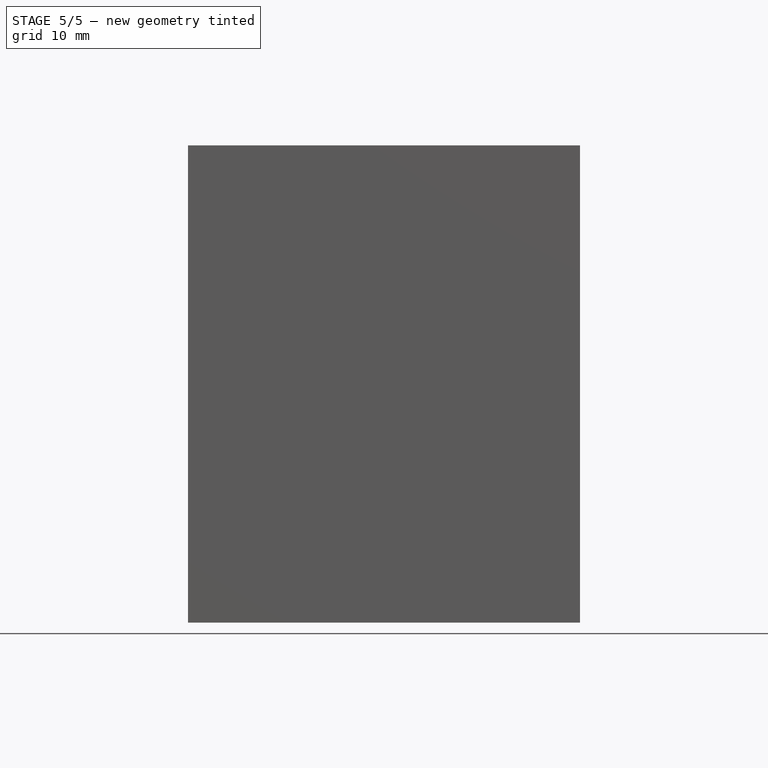
[diagram: stage 5 of 5 — front view after this stage's code; geometry added in this stage tinted green]
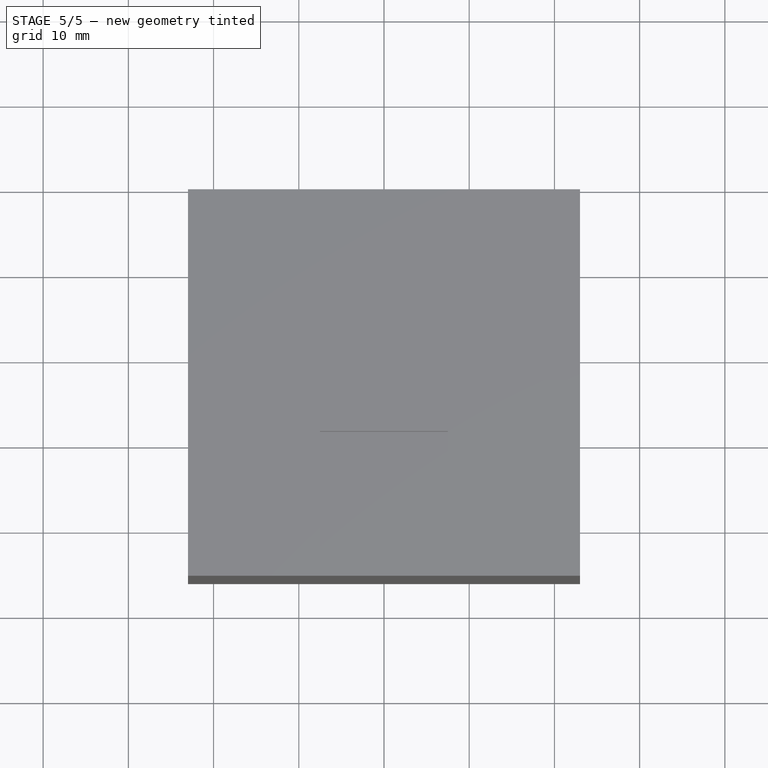
[diagram: stage 5 of 5 — top view after this stage's code; geometry added in this stage tinted green]
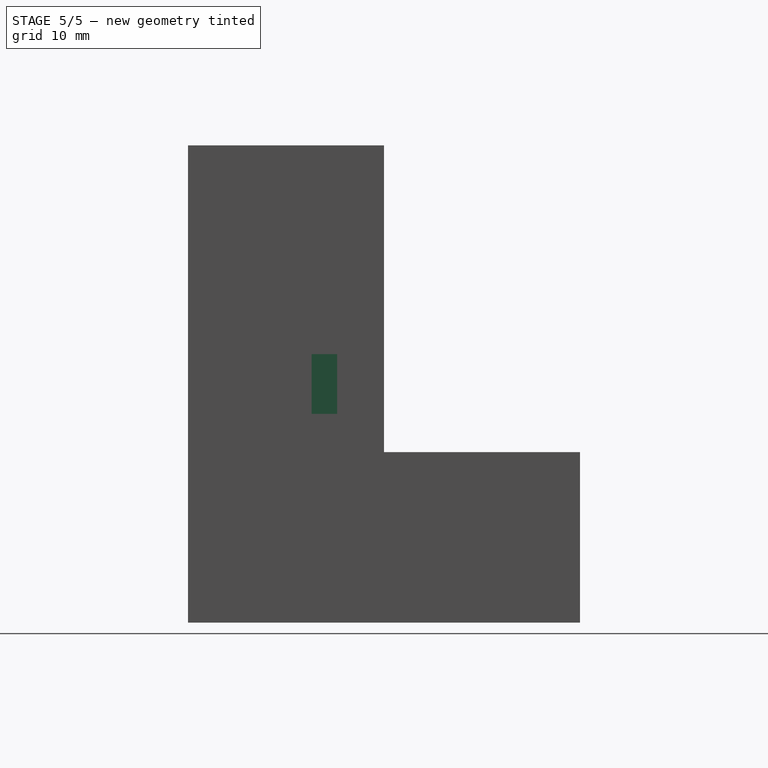
[diagram: stage 5 of 5 — right view after this stage's code; geometry added in this stage tinted green]
FEATURE [Sketcher::SketchObject] Sketch011
  ArcFitTolerance = 1e-06
  AttachmentSupport = -> [Pocket003]
  ExternalGeometry = -> [Pocket003]
  FullyConstrained = true
  MakeInternals = false
  MapMode = 5
  Placement = pos=(23,0,0) rot=(0.707107,0,0.707107;3.14159rad)
  sketch-geometry (4):
    g0: LineSegment StartX=-3.5 StartY=31.5 StartZ=0 EndX=3.5 EndY=31.5 EndZ=0
    g1: LineSegment StartX=3.5 StartY=31.5 StartZ=0 EndX=3.5 EndY=28.5 EndZ=0
    g2: LineSegment StartX=3.5 StartY=28.5 StartZ=0 EndX=-3.5 EndY=28.5 EndZ=0
    g3: LineSegment StartX=-3.5 StartY=28.5 StartZ=0 EndX=-3.5 EndY=31.5 EndZ=0
  constraints (8):
    c: Coincident(g0,g-6)
    c: Coincident(g0,g-4)
    c: Coincident(g1,g0)
    c: Coincident(g1,g-5)
    c: Coincident(g2,g1)
    c: Coincident(g2,g-6)
    c: Coincident(g3,g2)
    c: Coincident(g3,g0)
FEATURE [PartDesign::Pocket] Pocket004
  BaseFeature = -> Pocket003
  Direction = (-1,0,2e-16)
  Length = 10
  Length2 = 5
  Placement = pos=(0,0,0) rot=(1,0,0;1.5708rad)
  Profile = -> Sketch011
  ReferenceAxis = -> Sketch011 [N_Axis]
  Refine = true
  Suppressed = false
  Type = 0
FEATURE [Sketcher::SketchObject] Sketch012
  ArcFitTolerance = 1e-06
  AttachmentSupport = -> [Pocket004]
  ExternalGeometry = -> [Pocket004]
  FullyConstrained = true
  MakeInternals = false
  MapMode = 5
  Placement = pos=(0,-25,0) rot=(-1,0,0;1.5708rad)
  sketch-geometry (2):
    g0: Circle CenterX=-16 CenterY=0 CenterZ=0 NormalX=0 NormalY=0 NormalZ=1 AngleXU=0 Radius=1.625
    g1: Circle CenterX=16 CenterY=0 CenterZ=0 NormalX=0 NormalY=0 NormalZ=1 AngleXU=0 Radius=1.625
  constraints (6):
    c: Diameter(g0) = 3.25
    c: PointOnObject(g0,g-1)
    c: Distance(g0,g-3) = 3
    c: Diameter(g1) = 3.25
    c: PointOnObject(g1,g-1)
    c: Distance(g1,g-4) = 3
FEATURE [PartDesign::Pocket] Pocket005
  BaseFeature = -> Pocket004
  Direction = (0,-1,-2e-16)
  Length = 10
  Length2 = 5
  Placement = pos=(0,0,0) rot=(1,0,0;1.5708rad)
  Profile = -> Sketch012
  ReferenceAxis = -> Sketch012 [N_Axis]
  Refine = true
  Suppressed = false
  Type = 0
FEATURE [Sketcher::SketchObject] Sketch013
  ArcFitTolerance = 1e-06
  AttachmentSupport = -> [Pocket005]
  ExternalGeometry = -> [Pocket005]
  FullyConstrained = true
  MakeInternals = false
  MapMode = 5
  Placement = pos=(0,-25,0) rot=(-1,0,0;1.5708rad)
  sketch-geometry (3):
    g0: LineSegment StartX=21 StartY=5 StartZ=0 EndX=21 EndY=15 EndZ=0
    g1: LineSegment StartX=11 StartY=5 StartZ=0 EndX=21 EndY=15 EndZ=0
    g2: LineSegment StartX=11 StartY=5 StartZ=0 EndX=21 EndY=5 EndZ=0
  constraints (7):
    c: Coincident(g0,g-3)
    c: Vertical(g0)
    c: Coincident(g1,g-3)
    c: Coincident(g1,g0)
    c: Coincident(g2,g1)
    c: Coincident(g2,g0)
    c: Angle(g1,g0) = 0.785398
FEATURE [PartDesign::Pad] Pad008
  BaseFeature = -> Pocket005
  Direction = (0,1,2e-16)
  Length = 10
  Length2 = 10
  Placement = pos=(0,0,0) rot=(1,0,0;1.5708rad)
  Profile = -> Sketch013
  ReferenceAxis = -> Sketch013 [N_Axis]
  Refine = true
  Reversed = true
  Suppressed = false
  Type = 0
FEATURE [Sketcher::SketchObject] Sketch014
  ArcFitTolerance = 1e-06
  AttachmentSupport = -> [Pad008]
  ExternalGeometry = -> [Pad008]
  FullyConstrained = true
  MakeInternals = false
  MapMode = 5
  Placement = pos=(0,-25,0) rot=(-1,0,0;1.5708rad)
  sketch-geometry (3):
    g0: LineSegment StartX=-21 StartY=5 StartZ=0 EndX=-21 EndY=15 EndZ=0
    g1: LineSegment StartX=-21 StartY=5 StartZ=0 EndX=-11 EndY=5 EndZ=0
    g2: LineSegment StartX=-21 StartY=15 StartZ=0 EndX=-11 EndY=5 EndZ=0
  constraints (7):
    c: Coincident(g0,g-3)
    c: Vertical(g0)
    c: Coincident(g1,g0)
    c: Coincident(g1,g-3)
    c: Coincident(g2,g0)
    c: Coincident(g2,g1)
    c: Angle(g0,g2) = 0.785398
FEATURE [PartDesign::Pad] Pad009
  BaseFeature = -> Pad008
  Direction = (0,1,2e-16)
  Length = 10
  Length2 = 10
  Placement = pos=(0,0,0) rot=(1,0,0;1.5708rad)
  Profile = -> Sketch014
  ReferenceAxis = -> Sketch014 [N_Axis]
  Refine = true
  Reversed = true
  Suppressed = false
  Type = 0
FEATURE [Sketcher::SketchObject] Sketch019
  ArcFitTolerance = 1e-06
  AttachmentSupport = -> [Pad009]
  ExternalGeometry = -> [Pad009]
  FullyConstrained = false
  MakeInternals = false
  MapMode = 5
  Placement = pos=(0,0,0) rot=(-1,0,0;1.5708rad)
  sketch-geometry (8):
    g0: LineSegment StartX=21 StartY=8 StartZ=0 EndX=7 EndY=8 EndZ=0
    g1: LineSegment StartX=7 StartY=8 StartZ=0 EndX=7 EndY=10 EndZ=0
    g2: LineSegment StartX=21 StartY=8 StartZ=0 EndX=21 EndY=10 EndZ=0
    g3: LineSegment StartX=21 StartY=10 StartZ=0 EndX=7 EndY=10 EndZ=0
    g4: LineSegment StartX=-7 StartY=8 StartZ=0 EndX=-21 EndY=8 EndZ=0
    g5: LineSegment StartX=-21 StartY=8 StartZ=0 EndX=-21 EndY=10 EndZ=0
    g6: LineSegment StartX=-21 StartY=10 StartZ=0 EndX=-7 EndY=10 EndZ=0
    g7: LineSegment StartX=-7 StartY=8 StartZ=0 EndX=-7 EndY=10 EndZ=0
  constraints (20):
    c: Coincident(g0,g-8)
    c: Coincident(g0,g-4)
    c: Distance(g1) = 2
    c: Coincident(g1,g0)
    c: PointOnObject(g1,g-4)
    c: Distance(g2) = 2
    c: Coincident(g2,g0)
    c: Vertical(g2)
    c: Coincident(g3,g1)
    c: Horizontal(g3)
    c: Coincident(g4,g-6)
    c: Coincident(g4,g-7)
    c: Distance(g5) = 2
    c: Coincident(g5,g4)
    c: Vertical(g5)
    c: Coincident(g6,g5)
    c: PointOnObject(g6,g-5)
    c: Horizontal(g6)
    c: Coincident(g7,g4)
    c: Coincident(g7,g6)
FEATURE [PartDesign::Pocket] Pocket009
  BaseFeature = -> Pad009
  Direction = (0,-1,-2e-16)
  Length = 3
  Length2 = 5
  Placement = pos=(0,0,0) rot=(1,0,0;1.5708rad)
  Profile = -> Sketch019
  ReferenceAxis = -> Sketch019 [N_Axis]
  Refine = true
  Suppressed = false
  Type = 0
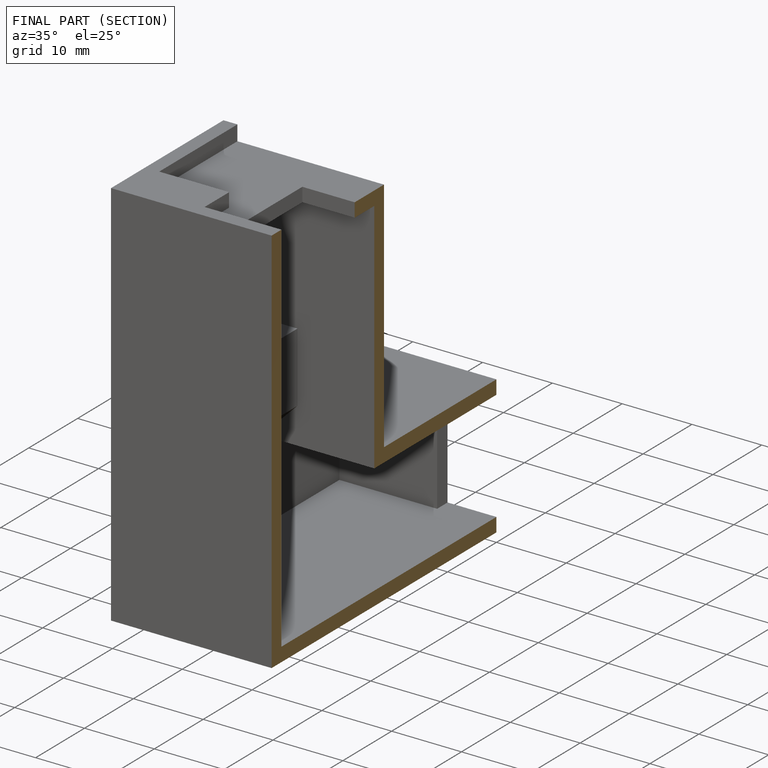
[diagram: finished part — half-section view (interior)]
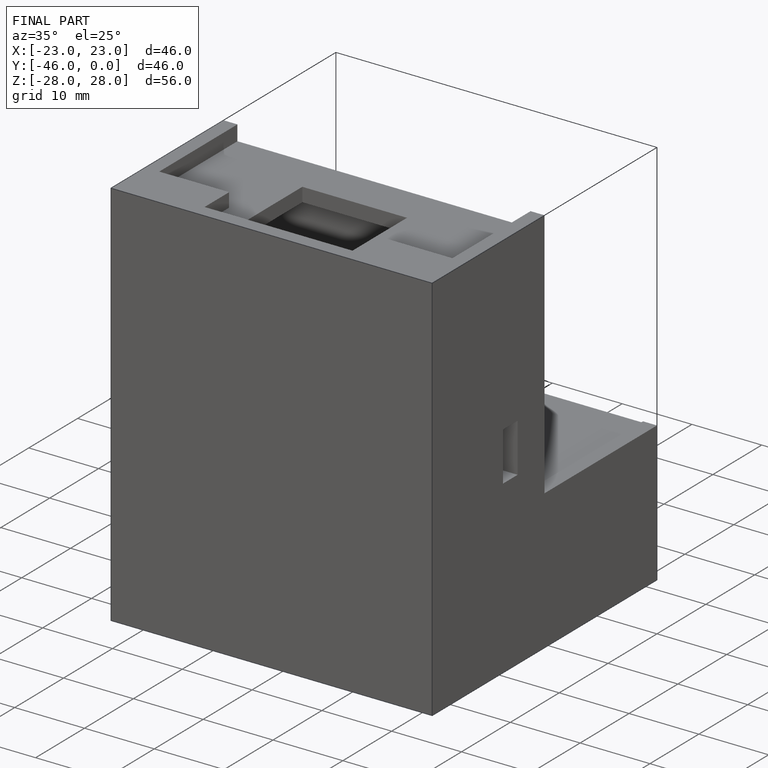
[diagram: finished part — iso view with bounding-box wireframe]
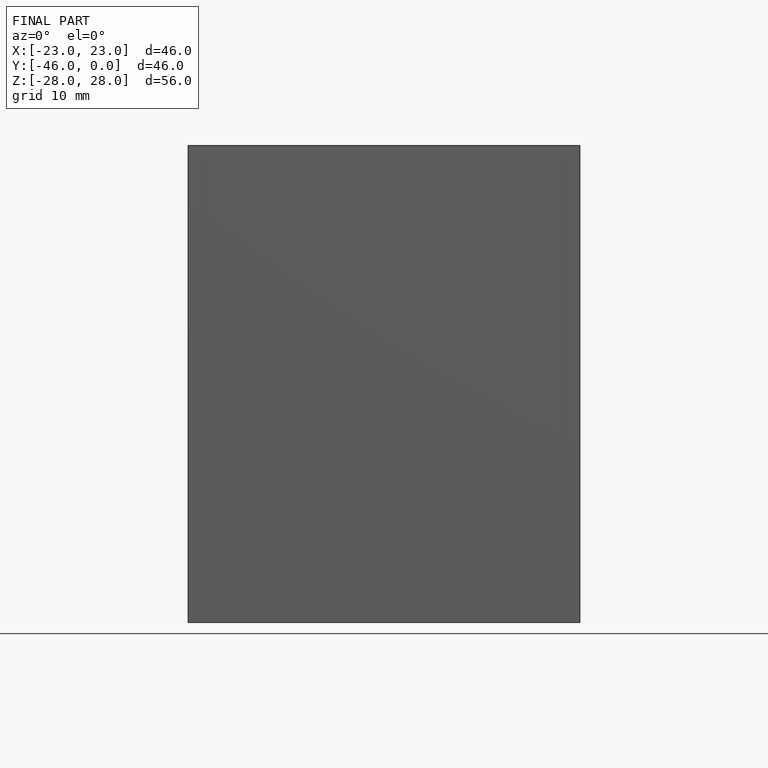
[diagram: finished part — front view with bounding-box wireframe]
